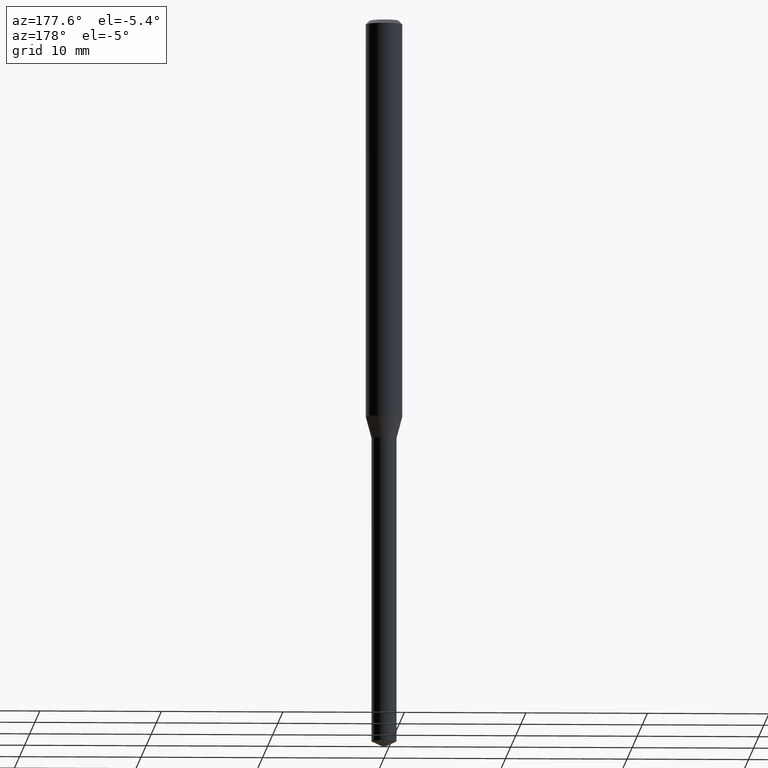
[diagram: clean part render]
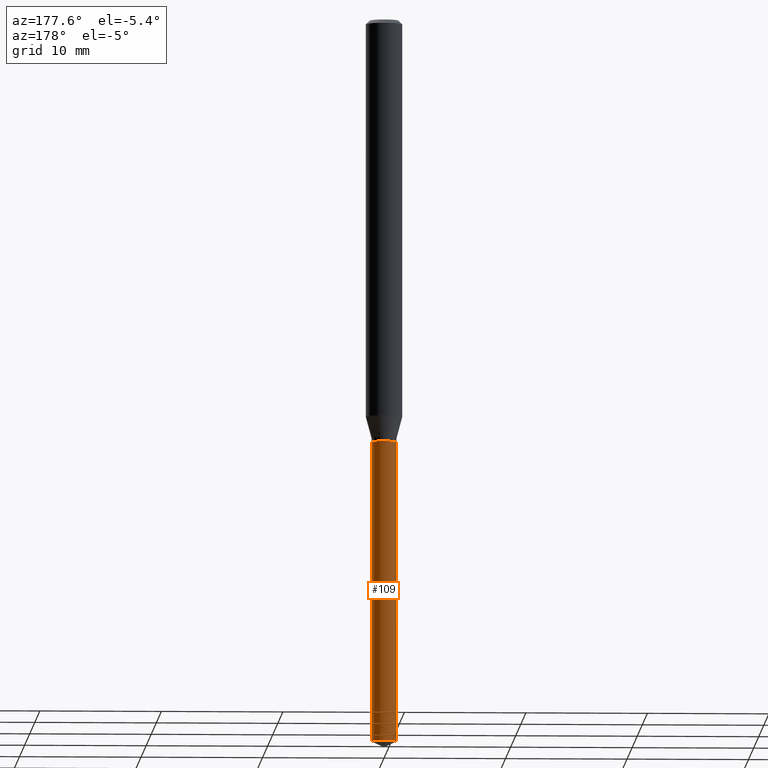
[diagram: same view with one face highlighted and labeled with its STEP entity id]
A machine part, auxiliary view. The second image highlights one B-rep face of the part: STEP entity #109.
In plain terms, the highlighted cylindrical surface (edge-blend (fillet) strip) has radius 1.0249 mm, axis along (-0, 0, 1).
Its self-contained STEP definition (entity closure, byte-faithful):
#49 = EDGE_CURVE ( 'NONE', #178, #166, #76, .T. ) ;
#60 = DIRECTION ( 'NONE',  ( 1.000000000000000000, -6.982962677686271444E-15, 0.000000000000000000 ) ) ;
#67 = VECTOR ( 'NONE', #313, 39.37007874015748143 ) ;
#70 = DIRECTION ( 'NONE',  ( -2.445468806185136877E-29, 3.491481338843145188E-15, 1.000000000000000000 ) ) ;
#71 = CARTESIAN_POINT ( 'NONE',  ( 0.04034999999999999698, -5.065441126393635915E-15, -1.370100000000000318 ) ) ;
#73 = VERTEX_POINT ( 'NONE', #210 ) ;
#76 = CIRCLE ( 'NONE', #314, 0.04034999999999999698 ) ;
#86 = EDGE_LOOP ( 'NONE', ( #161, #364, #225, #183 ) ) ;
#93 = CARTESIAN_POINT ( 'NONE',  ( 0.04035000000000000392, -8.463645746625293434E-15, -2.343384485993445843 ) ) ;
#109 = ADVANCED_FACE ( 'NONE', ( #326 ), #410, .T. ) ;
#160 = CARTESIAN_POINT ( 'NONE',  ( 5.730673661395162448E-29, -8.181883202580652503E-15, -2.343384485993445843 ) ) ;
#161 = ORIENTED_EDGE ( 'NONE', *, *, #254, .T. ) ;
#166 = VERTEX_POINT ( 'NONE', #453 ) ;
#168 = CARTESIAN_POINT ( 'NONE',  ( 3.350536811354256393E-29, -4.783678582348994195E-15, -1.370100000000000318 ) ) ;
#178 = VERTEX_POINT ( 'NONE', #486 ) ;
#183 = ORIENTED_EDGE ( 'NONE', *, *, #365, .F. ) ;
#191 = DIRECTION ( 'NONE',  ( 1.000000000000000000, -6.982962677686271444E-15, 0.000000000000000000 ) ) ;
#208 = AXIS2_PLACEMENT_3D ( 'NONE', #214, #369, #477 ) ;
#210 = CARTESIAN_POINT ( 'NONE',  ( -0.04035000000000000392, -7.895179208701451310E-15, -2.343384485993445843 ) ) ;
#214 = CARTESIAN_POINT ( 'NONE',  ( 3.350536811354256393E-29, -4.783678582348994195E-15, -1.370100000000000318 ) ) ;
#220 = EDGE_CURVE ( 'NONE', #73, #166, #346, .T. ) ;
#225 = ORIENTED_EDGE ( 'NONE', *, *, #49, .F. ) ;
#254 = EDGE_CURVE ( 'NONE', #320, #73, #381, .T. ) ;
#268 = DIRECTION ( 'NONE',  ( -2.445468806185136597E-29, 3.491481338843145583E-15, 1.000000000000000000 ) ) ;
#313 = DIRECTION ( 'NONE',  ( -2.445468806185136877E-29, 3.491481338843145188E-15, 1.000000000000000000 ) ) ;
#314 = AXIS2_PLACEMENT_3D ( 'NONE', #168, #404, #60 ) ;
#320 = VERTEX_POINT ( 'NONE', #93 ) ;
#325 = AXIS2_PLACEMENT_3D ( 'NONE', #160, #268, #191 ) ;
#326 = FACE_OUTER_BOUND ( 'NONE', #86, .T. ) ;
#346 = LINE ( 'NONE', #391, #403 ) ;
#364 = ORIENTED_EDGE ( 'NONE', *, *, #220, .T. ) ;
#365 = EDGE_CURVE ( 'NONE', #320, #178, #423, .T. ) ;
#369 = DIRECTION ( 'NONE',  ( -2.445468806185136597E-29, 3.491481338843145583E-15, 1.000000000000000000 ) ) ;
#381 = CIRCLE ( 'NONE', #325, 0.04034999999999999698 ) ;
#391 = CARTESIAN_POINT ( 'NONE',  ( -0.04034999999999999698, -4.496974588469793791E-15, -1.370100000000000318 ) ) ;
#403 = VECTOR ( 'NONE', #70, 39.37007874015748143 ) ;
#404 = DIRECTION ( 'NONE',  ( -2.445468806185136597E-29, 3.491481338843145583E-15, 1.000000000000000000 ) ) ;
#410 = CYLINDRICAL_SURFACE ( 'NONE', #208, 0.04034999999999999698 ) ;
#423 = LINE ( 'NONE', #71, #67 ) ;
#453 = CARTESIAN_POINT ( 'NONE',  ( -0.04034999999999999698, -6.196076898585622156E-15, -1.370100000000000318 ) ) ;
#477 = DIRECTION ( 'NONE',  ( 1.000000000000000000, -6.982962677686271444E-15, 0.000000000000000000 ) ) ;
#486 = CARTESIAN_POINT ( 'NONE',  ( 0.04034999999999999698, -5.065441126393635915E-15, -1.370100000000000318 ) ) ;